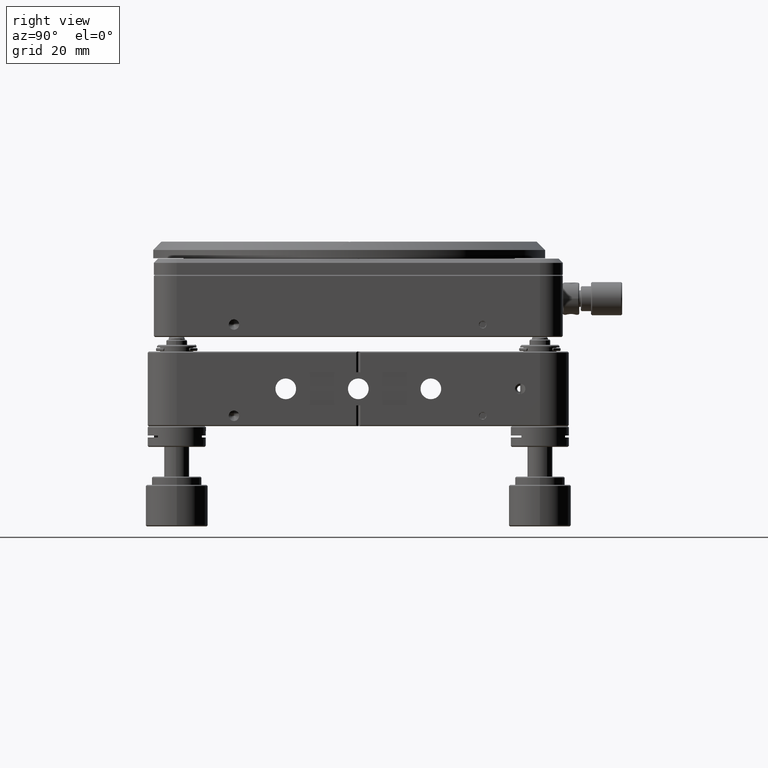
[diagram: clean part render]
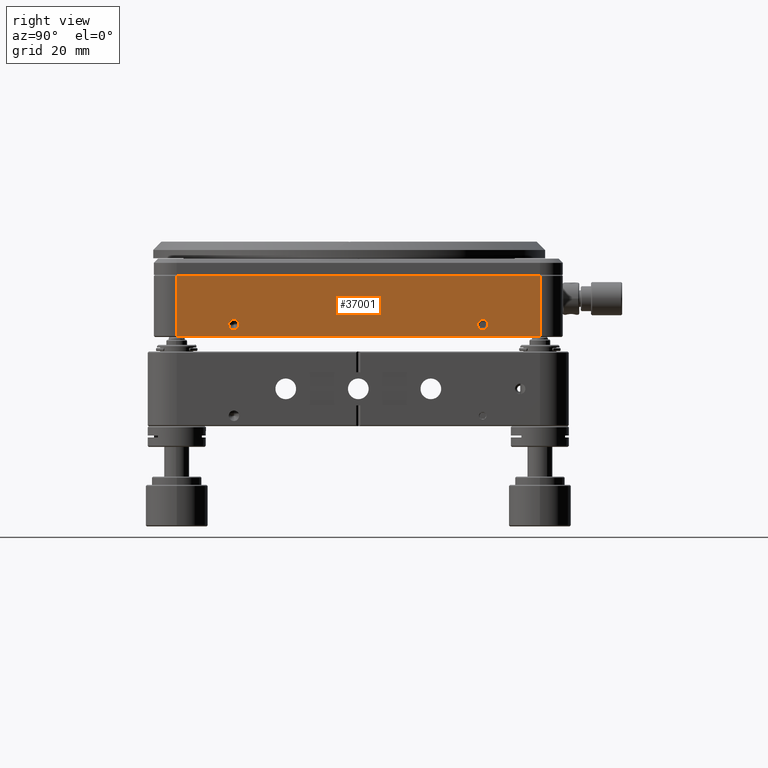
[diagram: same view with one face highlighted and labeled with its STEP entity id]
A machine part, right view. The second image highlights one B-rep face of the part: STEP entity #37001.
In plain terms, the highlighted planar face has unit normal (-1, -0, -0).
Its self-contained STEP definition (entity closure, byte-faithful):
#255 = VERTEX_POINT ( 'NONE', #5713 ) ;
#659 = DIRECTION ( 'NONE',  ( 1.000000000000000000, 1.110223024625156540E-16, 4.020564883593777838E-17 ) ) ;
#726 = DIRECTION ( 'NONE',  ( 0.000000000000000000, 0.000000000000000000, -1.000000000000000000 ) ) ;
#757 = VECTOR ( 'NONE', #41388, 1000.000000000000000 ) ;
#2510 = ORIENTED_EDGE ( 'NONE', *, *, #13318, .F. ) ;
#2650 = DIRECTION ( 'NONE',  ( 1.000000000000000000, 1.110223024625156540E-16, 4.020564883593777838E-17 ) ) ;
#5713 = CARTESIAN_POINT ( 'NONE',  ( 49.30000000000082139, -43.79999999999952820, 27.25000000000009237 ) ) ;
#6146 = VERTEX_POINT ( 'NONE', #25315 ) ;
#7441 = CIRCLE ( 'NONE', #19067, 1.249999999999994227 ) ;
#8065 = EDGE_LOOP ( 'NONE', ( #18160, #39089, #27359, #34066 ) ) ;
#8419 = AXIS2_PLACEMENT_3D ( 'NONE', #28524, #42570, #31426 ) ;
#8827 = LINE ( 'NONE', #41318, #24177 ) ;
#11352 = CARTESIAN_POINT ( 'NONE',  ( 49.30000000000082139, -49.29999999999952820, 12.75000000000016342 ) ) ;
#11599 = CARTESIAN_POINT ( 'NONE',  ( 49.30000000000080718, 43.80000000000046612, 27.50000000000011369 ) ) ;
#11613 = LINE ( 'NONE', #44537, #757 ) ;
#11843 = CIRCLE ( 'NONE', #42787, 1.249999999999994227 ) ;
#13202 = VERTEX_POINT ( 'NONE', #33971 ) ;
#13318 = EDGE_CURVE ( 'NONE', #6146, #41883, #11843, .T. ) ;
#13590 = CARTESIAN_POINT ( 'NONE',  ( 49.30000000000071481, 30.00000000000064659, 15.50000000000011369 ) ) ;
#14163 = EDGE_CURVE ( 'NONE', #19810, #255, #8827, .T. ) ;
#14298 = DIRECTION ( 'NONE',  ( 0.000000000000000000, 0.000000000000000000, -1.000000000000000000 ) ) ;
#14988 = DIRECTION ( 'NONE',  ( -1.110223024625156540E-16, 1.000000000000000000, 1.108837722244320059E-17 ) ) ;
#15232 = DIRECTION ( 'NONE',  ( 4.020564883593777838E-17, 1.108837722244320521E-17, -1.000000000000000000 ) ) ;
#15488 = CIRCLE ( 'NONE', #29419, 1.249999999999997558 ) ;
#15514 = CARTESIAN_POINT ( 'NONE',  ( 49.30000000000271143, -43.79999999999952820, 12.74999999999867306 ) ) ;
#16824 = VERTEX_POINT ( 'NONE', #38641 ) ;
#18093 = DIRECTION ( 'NONE',  ( 0.000000000000000000, 0.000000000000000000, -1.000000000000000000 ) ) ;
#18160 = ORIENTED_EDGE ( 'NONE', *, *, #46174, .T. ) ;
#18695 = VERTEX_POINT ( 'NONE', #25678 ) ;
#19067 = AXIS2_PLACEMENT_3D ( 'NONE', #32129, #24359, #27981 ) ;
#19810 = VERTEX_POINT ( 'NONE', #15514 ) ;
#20199 = VERTEX_POINT ( 'NONE', #37520 ) ;
#21413 = CARTESIAN_POINT ( 'NONE',  ( 49.30000000000071481, 30.00000000000064659, 16.75000000000011013 ) ) ;
#21533 = EDGE_CURVE ( 'NONE', #41883, #6146, #7441, .T. ) ;
#24177 = VECTOR ( 'NONE', #35692, 1000.000000000000000 ) ;
#24359 = DIRECTION ( 'NONE',  ( 1.000000000000000000, 1.110223024625156540E-16, 4.020564883593777838E-17 ) ) ;
#25315 = CARTESIAN_POINT ( 'NONE',  ( 49.30000000000071481, 30.00000000000064659, 14.25000000000012079 ) ) ;
#25678 = CARTESIAN_POINT ( 'NONE',  ( 49.30000000000495675, 43.80000000000049454, 12.74999999999867306 ) ) ;
#27359 = ORIENTED_EDGE ( 'NONE', *, *, #37829, .F. ) ;
#27728 = ORIENTED_EDGE ( 'NONE', *, *, #38152, .F. ) ;
#27786 = FACE_BOUND ( 'NONE', #36827, .T. ) ;
#27981 = DIRECTION ( 'NONE',  ( 0.000000000000000000, 0.000000000000000000, -1.000000000000000000 ) ) ;
#28524 = CARTESIAN_POINT ( 'NONE',  ( 49.30000000000082139, -49.29999999999952820, 27.50000000000011369 ) ) ;
#29419 = AXIS2_PLACEMENT_3D ( 'NONE', #37027, #659, #18093 ) ;
#31426 = DIRECTION ( 'NONE',  ( -4.020564883593777838E-17, -1.108837722244320521E-17, 1.000000000000000000 ) ) ;
#32129 = CARTESIAN_POINT ( 'NONE',  ( 49.30000000000071481, 30.00000000000064659, 15.50000000000011369 ) ) ;
#32495 = VECTOR ( 'NONE', #15232, 1000.000000000000000 ) ;
#33422 = EDGE_CURVE ( 'NONE', #20199, #13202, #38451, .T. ) ;
#33971 = CARTESIAN_POINT ( 'NONE',  ( 49.30000000000092797, -29.99999999999935341, 16.75000000000011369 ) ) ;
#34066 = ORIENTED_EDGE ( 'NONE', *, *, #14163, .F. ) ;
#35692 = DIRECTION ( 'NONE',  ( -4.020564883593777838E-17, -1.108837722244320521E-17, 1.000000000000000000 ) ) ;
#35877 = EDGE_LOOP ( 'NONE', ( #37919, #27728 ) ) ;
#36827 = EDGE_LOOP ( 'NONE', ( #2510, #44474 ) ) ;
#37001 = ADVANCED_FACE ( 'NONE', ( #39448, #46652, #27786 ), #43288, .F. ) ;
#37027 = CARTESIAN_POINT ( 'NONE',  ( 49.30000000000092797, -29.99999999999935341, 15.50000000000011369 ) ) ;
#37073 = LINE ( 'NONE', #11352, #40239 ) ;
#37520 = CARTESIAN_POINT ( 'NONE',  ( 49.30000000000092797, -29.99999999999935341, 14.25000000000011724 ) ) ;
#37829 = EDGE_CURVE ( 'NONE', #255, #16824, #11613, .T. ) ;
#37919 = ORIENTED_EDGE ( 'NONE', *, *, #33422, .F. ) ;
#38152 = EDGE_CURVE ( 'NONE', #13202, #20199, #15488, .T. ) ;
#38264 = CARTESIAN_POINT ( 'NONE',  ( 49.30000000000092797, -29.99999999999935341, 15.50000000000011369 ) ) ;
#38451 = CIRCLE ( 'NONE', #39997, 1.249999999999997558 ) ;
#38641 = CARTESIAN_POINT ( 'NONE',  ( 49.30000000000080718, 43.80000000000046612, 27.25000000000009237 ) ) ;
#39089 = ORIENTED_EDGE ( 'NONE', *, *, #46254, .F. ) ;
#39448 = FACE_OUTER_BOUND ( 'NONE', #8065, .T. ) ;
#39997 = AXIS2_PLACEMENT_3D ( 'NONE', #38264, #41407, #726 ) ;
#40239 = VECTOR ( 'NONE', #14988, 1000.000000000000000 ) ;
#41318 = CARTESIAN_POINT ( 'NONE',  ( 49.30000000000082139, -43.79999999999952820, 27.50000000000011369 ) ) ;
#41388 = DIRECTION ( 'NONE',  ( -1.110223024625156540E-16, 1.000000000000000000, 1.108837722244320059E-17 ) ) ;
#41407 = DIRECTION ( 'NONE',  ( 1.000000000000000000, 1.110223024625156540E-16, 4.020564883593777838E-17 ) ) ;
#41883 = VERTEX_POINT ( 'NONE', #21413 ) ;
#42570 = DIRECTION ( 'NONE',  ( -1.000000000000000000, -1.110223024625156540E-16, -4.020564883593777838E-17 ) ) ;
#42787 = AXIS2_PLACEMENT_3D ( 'NONE', #13590, #2650, #14298 ) ;
#43288 = PLANE ( 'NONE',  #8419 ) ;
#44474 = ORIENTED_EDGE ( 'NONE', *, *, #21533, .F. ) ;
#44537 = CARTESIAN_POINT ( 'NONE',  ( 49.30000000000082139, -49.29999999999952820, 27.25000000000009237 ) ) ;
#46174 = EDGE_CURVE ( 'NONE', #19810, #18695, #37073, .T. ) ;
#46254 = EDGE_CURVE ( 'NONE', #16824, #18695, #47669, .T. ) ;
#46652 = FACE_BOUND ( 'NONE', #35877, .T. ) ;
#47669 = LINE ( 'NONE', #11599, #32495 ) ;